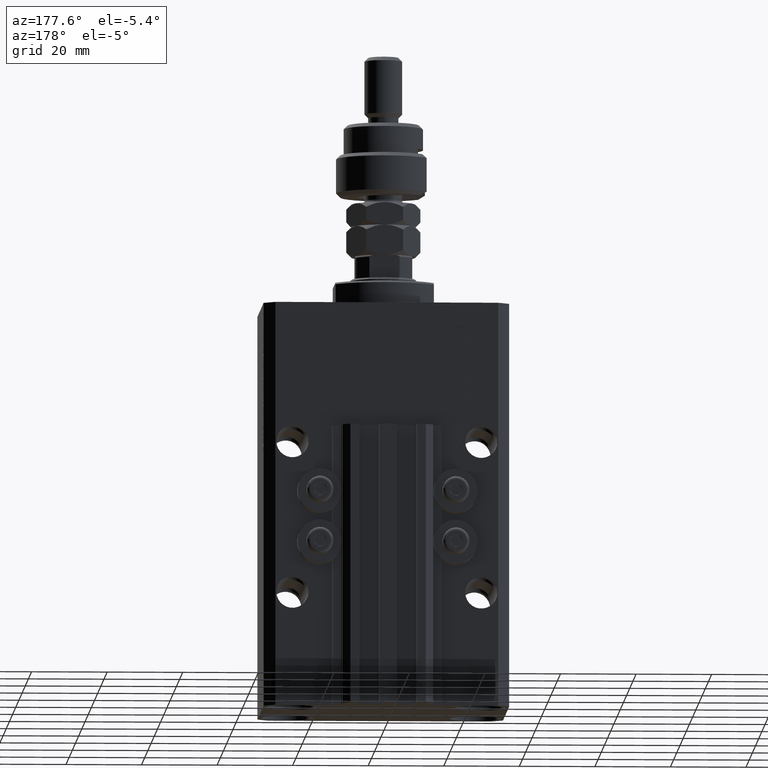
[diagram: clean part render]
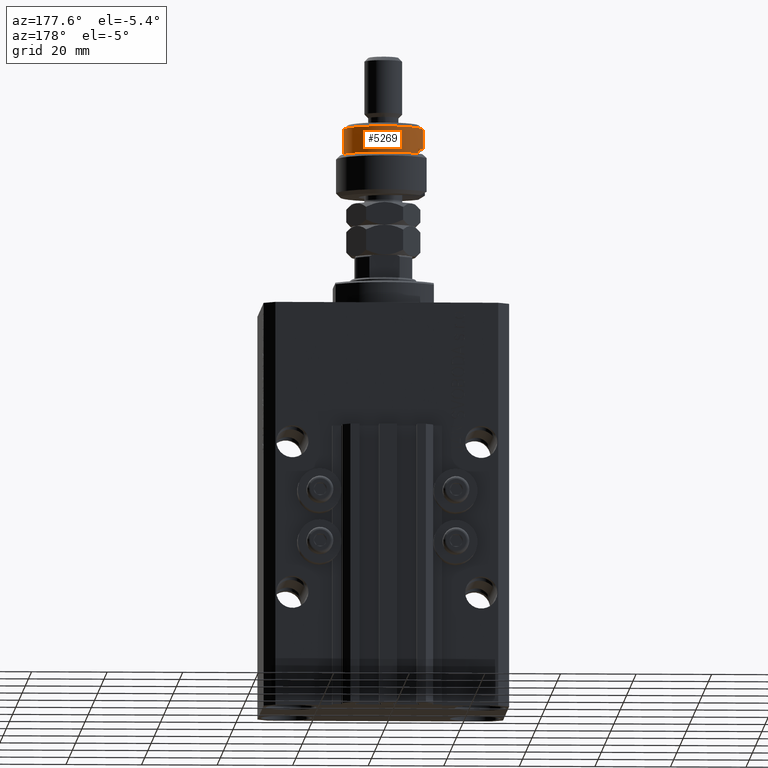
[diagram: same view with one face highlighted and labeled with its STEP entity id]
A machine part, auxiliary view. The second image highlights one B-rep face of the part: STEP entity #5269.
In plain terms, the highlighted cylindrical surface (partial cylindrical patch) has radius 10.5 mm, axis along (-0, -0, -1).
Its self-contained STEP definition (entity closure, byte-faithful):
#210 = VERTEX_POINT ( 'NONE', #42195 ) ;
#975 = ORIENTED_EDGE ( 'NONE', *, *, #8408, .T. ) ;
#1172 = DIRECTION ( 'NONE',  ( 1.000000000000000000, 0.000000000000000000, 0.000000000000000000 ) ) ;
#3255 = EDGE_CURVE ( 'NONE', #36029, #26662, #42017, .T. ) ;
#3964 = VECTOR ( 'NONE', #36032, 1000.000000000000000 ) ;
#4867 = LINE ( 'NONE', #20438, #3964 ) ;
#5269 = ADVANCED_FACE ( 'NONE', ( #47949 ), #16796, .T. ) ;
#8408 = EDGE_CURVE ( 'NONE', #36029, #210, #30339, .T. ) ;
#10075 = CARTESIAN_POINT ( 'NONE',  ( -8.944271909999159220, 5.500000000000000000, 12.50000000000000000 ) ) ;
#14764 = LINE ( 'NONE', #22669, #33089 ) ;
#15270 = DIRECTION ( 'NONE',  ( 0.000000000000000000, 0.000000000000000000, 1.000000000000000000 ) ) ;
#16254 = DIRECTION ( 'NONE',  ( 0.000000000000000000, 0.000000000000000000, -1.000000000000000000 ) ) ;
#16796 = CYLINDRICAL_SURFACE ( 'NONE', #39245, 10.50000000000000000 ) ;
#17376 = EDGE_CURVE ( 'NONE', #23406, #42857, #14764, .T. ) ;
#17552 = CIRCLE ( 'NONE', #20834, 10.50000000000000000 ) ;
#19462 = EDGE_CURVE ( 'NONE', #38434, #23406, #17552, .T. ) ;
#20128 = ORIENTED_EDGE ( 'NONE', *, *, #3255, .F. ) ;
#20438 = CARTESIAN_POINT ( 'NONE',  ( 10.50000000000000000, 1.285879139104720831E-15, 19.00000000000000000 ) ) ;
#20540 = AXIS2_PLACEMENT_3D ( 'NONE', #46652, #16254, #1172 ) ;
#20834 = AXIS2_PLACEMENT_3D ( 'NONE', #25467, #25733, #25980 ) ;
#21371 = DIRECTION ( 'NONE',  ( -1.000000000000000000, 0.000000000000000000, 0.000000000000000000 ) ) ;
#22098 = VECTOR ( 'NONE', #49431, 1000.000000000000000 ) ;
#22669 = CARTESIAN_POINT ( 'NONE',  ( -8.944271909999159220, 5.500000000000000000, 19.00000000000000000 ) ) ;
#23149 = ORIENTED_EDGE ( 'NONE', *, *, #35572, .T. ) ;
#23406 = VERTEX_POINT ( 'NONE', #23727 ) ;
#23727 = CARTESIAN_POINT ( 'NONE',  ( -8.944271909999159220, 5.500000000000000000, 11.00000000000000000 ) ) ;
#25467 = CARTESIAN_POINT ( 'NONE',  ( 0.000000000000000000, 0.000000000000000000, 11.00000000000000000 ) ) ;
#25596 = ORIENTED_EDGE ( 'NONE', *, *, #39049, .F. ) ;
#25733 = DIRECTION ( 'NONE',  ( 0.000000000000000000, 0.000000000000000000, 1.000000000000000000 ) ) ;
#25897 = CARTESIAN_POINT ( 'NONE',  ( 0.000000000000000000, 0.000000000000000000, 12.50000000000000000 ) ) ;
#25980 = DIRECTION ( 'NONE',  ( 1.000000000000000000, 0.000000000000000000, 0.000000000000000000 ) ) ;
#26662 = VERTEX_POINT ( 'NONE', #44022 ) ;
#26804 = CIRCLE ( 'NONE', #30879, 10.50000000000000000 ) ;
#27002 = ORIENTED_EDGE ( 'NONE', *, *, #17376, .T. ) ;
#30254 = CARTESIAN_POINT ( 'NONE',  ( -10.50000000000000000, 0.000000000000000000, 17.99999999999999645 ) ) ;
#30339 = CIRCLE ( 'NONE', #20540, 10.50000000000000000 ) ;
#30879 = AXIS2_PLACEMENT_3D ( 'NONE', #25897, #37374, #37127 ) ;
#33089 = VECTOR ( 'NONE', #15270, 1000.000000000000000 ) ;
#35572 = EDGE_CURVE ( 'NONE', #210, #38434, #4867, .T. ) ;
#35964 = DIRECTION ( 'NONE',  ( -0.000000000000000000, -0.000000000000000000, -1.000000000000000000 ) ) ;
#36029 = VERTEX_POINT ( 'NONE', #30254 ) ;
#36032 = DIRECTION ( 'NONE',  ( -0.000000000000000000, -0.000000000000000000, -1.000000000000000000 ) ) ;
#37127 = DIRECTION ( 'NONE',  ( -1.000000000000000000, 0.000000000000000000, 0.000000000000000000 ) ) ;
#37374 = DIRECTION ( 'NONE',  ( 0.000000000000000000, 0.000000000000000000, -1.000000000000000000 ) ) ;
#38434 = VERTEX_POINT ( 'NONE', #41581 ) ;
#39049 = EDGE_CURVE ( 'NONE', #26662, #42857, #26804, .T. ) ;
#39245 = AXIS2_PLACEMENT_3D ( 'NONE', #39781, #35964, #21371 ) ;
#39781 = CARTESIAN_POINT ( 'NONE',  ( 0.000000000000000000, 0.000000000000000000, 19.00000000000000000 ) ) ;
#41581 = CARTESIAN_POINT ( 'NONE',  ( 10.50000000000000000, 1.285879139104720831E-15, 11.00000000000000000 ) ) ;
#42017 = LINE ( 'NONE', #42271, #22098 ) ;
#42195 = CARTESIAN_POINT ( 'NONE',  ( 10.50000000000000000, 1.285879139104720831E-15, 17.99999999999999645 ) ) ;
#42271 = CARTESIAN_POINT ( 'NONE',  ( -10.50000000000000000, 0.000000000000000000, 19.00000000000000000 ) ) ;
#42857 = VERTEX_POINT ( 'NONE', #10075 ) ;
#42955 = EDGE_LOOP ( 'NONE', ( #975, #23149, #44295, #27002, #25596, #20128 ) ) ;
#44022 = CARTESIAN_POINT ( 'NONE',  ( -10.50000000000000000, 0.000000000000000000, 12.50000000000000000 ) ) ;
#44295 = ORIENTED_EDGE ( 'NONE', *, *, #19462, .T. ) ;
#46652 = CARTESIAN_POINT ( 'NONE',  ( 0.000000000000000000, 0.000000000000000000, 17.99999999999999645 ) ) ;
#47949 = FACE_OUTER_BOUND ( 'NONE', #42955, .T. ) ;
#49431 = DIRECTION ( 'NONE',  ( -0.000000000000000000, -0.000000000000000000, -1.000000000000000000 ) ) ;